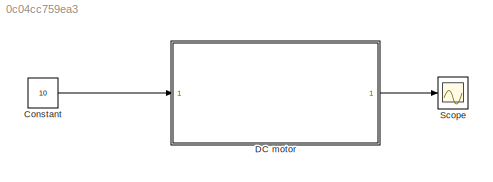
MODEL slx_0c04cc759ea3
KIND model
CONFIG AbsTol = auto
CONFIG EnableMultiTasking = off
CONFIG FixedStep = auto
CONFIG MaxStep = auto
CONFIG MinStep = auto
CONFIG RelTol = 1e-3
CONFIG SampleTimeConstraint = Unconstrained
CONFIG SolverName = VariableStepAuto
CONFIG StartTime = 0.0
CONFIG StopTime = 0.1
BLOCK [Constant] Constant
  Value = 10
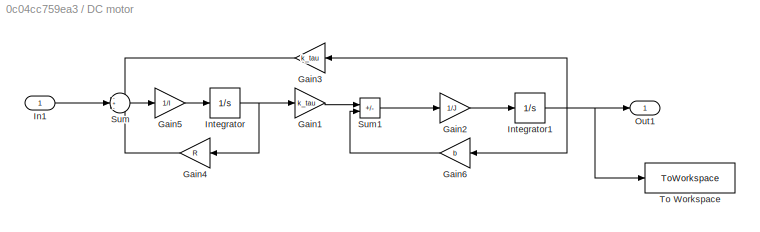
BLOCK [SubSystem] DC motor 
  Ports = [1, 1]
  RequestExecContextInheritance = off
BLOCK [Gain] DC motor /Gain1
  Gain = k_tau
BLOCK [Gain] DC motor /Gain2
  Gain = 1/J
BLOCK [Gain] DC motor /Gain3
  Gain = k_tau
BLOCK [Gain] DC motor /Gain4
  Gain = R
  NameLocation = top
BLOCK [Gain] DC motor /Gain5
  Gain = 1/I
BLOCK [Gain] DC motor /Gain6
  Gain = b
BLOCK [Inport] DC motor /In1
BLOCK [Integrator] DC motor /Integrator
  Ports = [1, 1]
BLOCK [Integrator] DC motor /Integrator1
  Ports = [1, 1]
BLOCK [Outport] DC motor /Out1
  VectorParamsAs1DForOutWhenUnconnected = off
BLOCK [Sum] DC motor /Sum
  Inputs = -+-
  Ports = [3, 1]
BLOCK [Sum] DC motor /Sum1
  IconShape = rectangular
  Inputs = +-
  Ports = [2, 1]
BLOCK [ToWorkspace] DC motor /To Workspace
  FixptAsFi = on
  MaxDataPoints = inf
  Ports = [1]
  SampleTime = -1
  SaveFormat = Timeseries
  VariableName = graf
BLOCK [Scope] Scope
  Floating = off
  NumInputPorts = 1
  Ports = [1]
  ScopeSpecificationString = Simulink.scopes.TimeScopeBlockCfg('CurrentConfiguration', extmgr.ConfigurationSet(extmgr.Configuration('Core','General UI',true),extmgr.Configuration('Core','Source UI',true),extmgr.Configuration('Sources','WiredSimulink',true,'DataLoggingVariableName','ScopeData1'),extmgr.Configuration('Visuals','Time Domain',true,'SerializedDisplays',{struct('MinYLimReal','-21.44726','MaxYLimReal','193.02532','Y...<+1479ch>
LINE Constant:1 -> DC motor :1
LINE DC motor /Gain1:1 -> DC motor /Sum1:1
LINE DC motor /Gain2:1 -> DC motor /Integrator1:1
LINE DC motor /Gain3:1 -> DC motor /Sum:1
LINE DC motor /Gain4:1 -> DC motor /Sum:3
LINE DC motor /Gain5:1 -> DC motor /Integrator:1
LINE DC motor /Gain6:1 -> DC motor /Sum1:2
LINE DC motor /In1:1 -> DC motor /Sum:2
NET DC motor /Integrator1:1 -> DC motor /Gain3:1, DC motor /Gain6:1, DC motor /Out1:1, DC motor /To Workspace:1
NET DC motor /Integrator:1 -> DC motor /Gain1:1, DC motor /Gain4:1
LINE DC motor /Sum1:1 -> DC motor /Gain2:1
LINE DC motor /Sum:1 -> DC motor /Gain5:1
LINE DC motor :1 -> Scope:1
note: NET lines group one-source signal fan-out (src -> all destinations, sorted); 1:1 wires keep LINE
